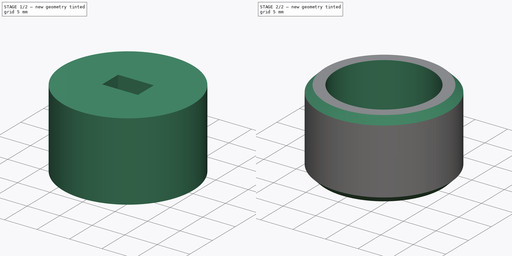
[diagram: build sequence overview — one tinted view per stage of 2, left to right]
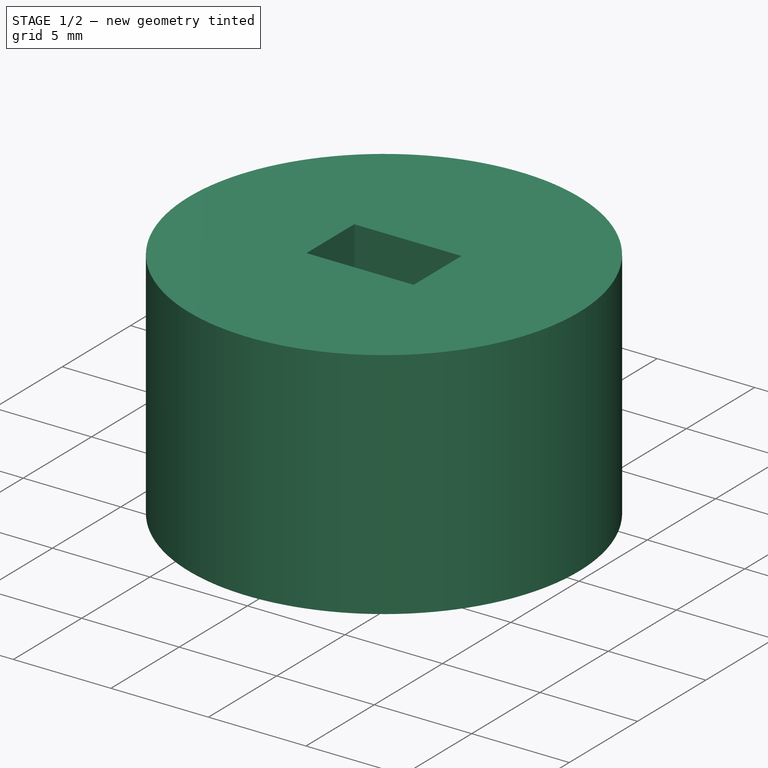
[diagram: stage 1 of 2 — iso view after this stage's code; geometry added in this stage tinted green]
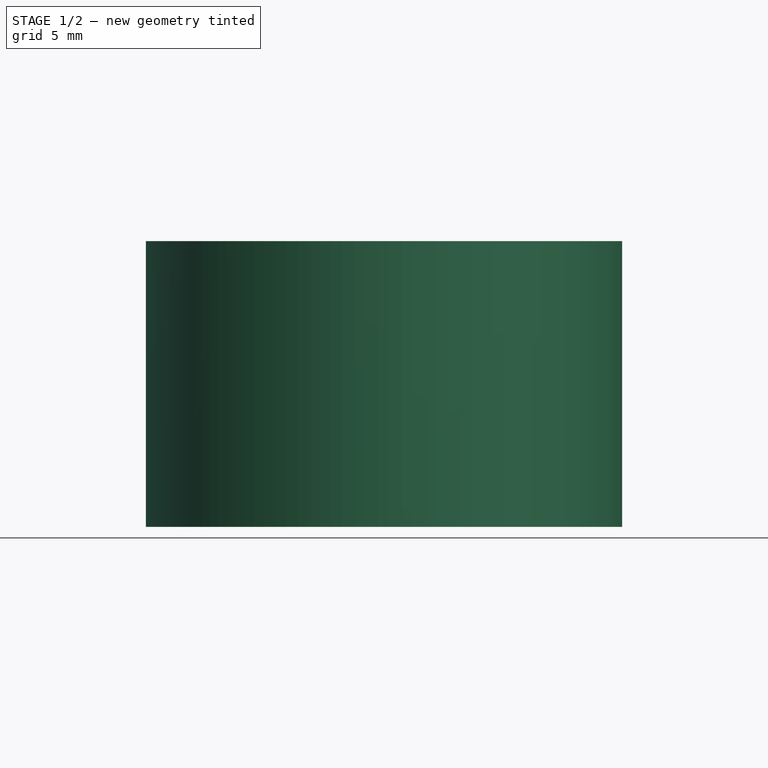
[diagram: stage 1 of 2 — front view after this stage's code; geometry added in this stage tinted green]
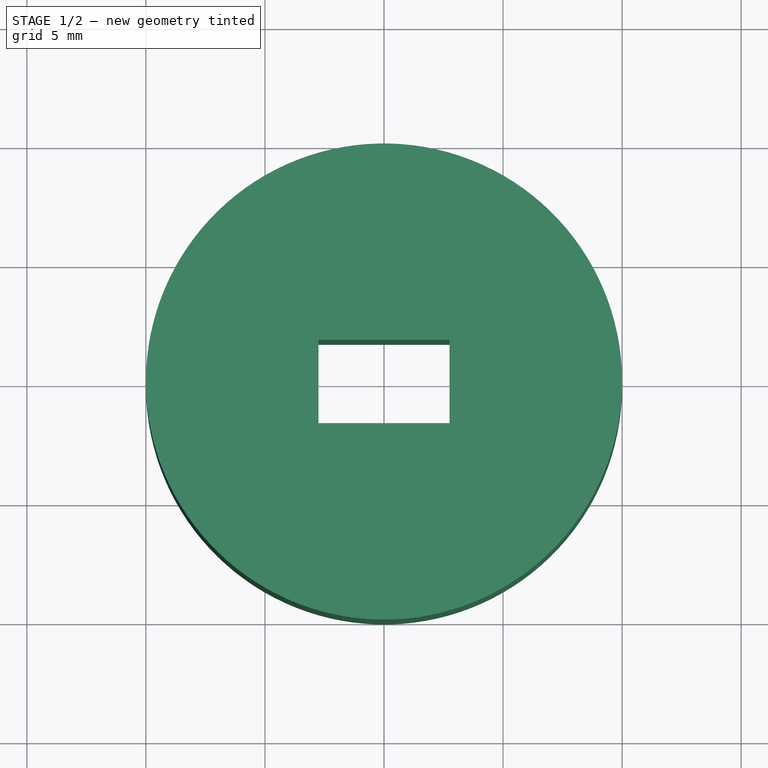
[diagram: stage 1 of 2 — top view after this stage's code; geometry added in this stage tinted green]
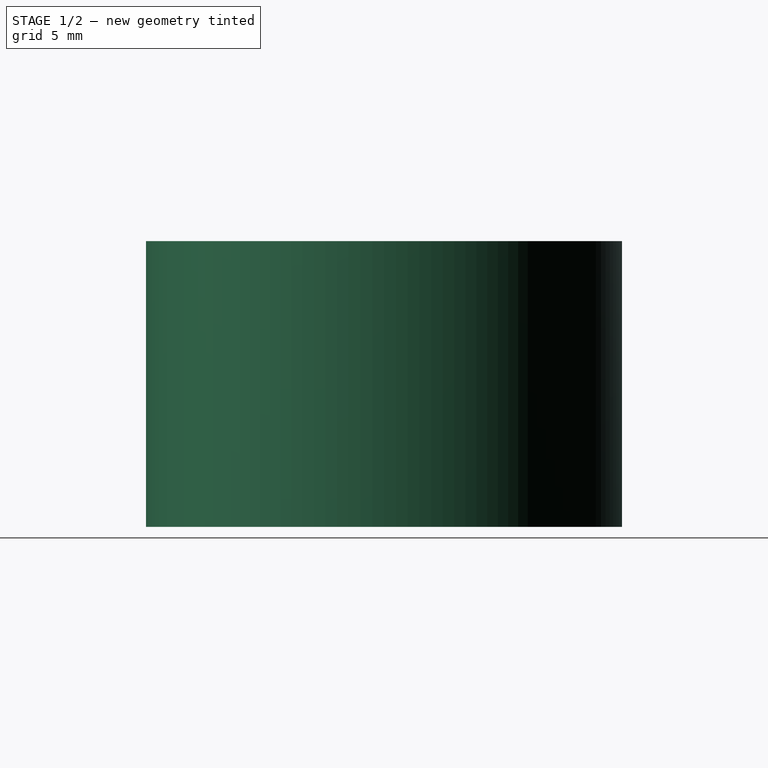
[diagram: stage 1 of 2 — right view after this stage's code; geometry added in this stage tinted green]
FCSTD DOCUMENT  (FreeCAD 0.16R6706 (Git))
Label: knob_adapter
License: All rights reserved
LicenseURL: http://en.wikipedia.org/wiki/All_rights_reserved
objects: Sketcher::SketchObject×3, PartDesign::Pocket×2, Spreadsheet::Sheet×1, PartDesign::Pad×1, PartDesign::Chamfer×1
note: 10 computed .brp shape members not serialized (recipe doc carries the construction recipe); baked Part::Feature solids carry a one-line shape summary decoded from their .brp

FEATURE [Spreadsheet::Sheet] Spreadsheet  label="Parameters"
  cells = A1=Parametric Knob Adapter; A4=Knob adapter parameters; B5=Model; C5=3D printed; D5=Radiant Dyes; E5=Thorlabs KM100; F5=Liop-Tec; A6=Inner diameter; B6(knb_D)=14.75; D6=16.1; E6=14.8; A7=Height; B7(knb_H)=7; D7=6; E7=8; A9=Knob external parameters; A10=Diameter; B10(D)=20; A11=Height; B11(H)=12; A12=Tolerance; B12(tol)=0.5; A14=Motor axle parameters; A15=Width; B15(axl_W)=5; A16=Height; B16(axl_H)=3
FEATURE [Sketcher::SketchObject] Sketch001  label="Sketch003"
  expr: Constraints[1] = Parameters.D / 2
  sketch-geometry (1):
    g0: Circle CenterX=0 CenterY=0 CenterZ=0 NormalX=0 NormalY=0 NormalZ=1 Radius=10
  constraints (2):
    c: Coincident(g0,g-1)
    c: Radius(g0) = 10
FEATURE [PartDesign::Pad] Pad  label="Main_block"
  Length = 12
  Length2 = 100
  Midplane = true
  Sketch = -> Sketch001
  Type = 0
  expr: Length = Parameters.H
FEATURE [Sketcher::SketchObject] Sketch
  Placement = pos=(0,0,-6) rot=(1,0,0;3.14159rad)
  Support = -> Pad [Face2]
  expr: Constraints[11] = Parameters.axl_H + Parameters.tol
  expr: Constraints[10] = Parameters.axl_W + Parameters.tol
  sketch-geometry (4):
    g0: LineSegment StartX=-2.75 StartY=1.75 StartZ=0 EndX=2.75 EndY=1.75 EndZ=0
    g1: LineSegment StartX=2.75 StartY=1.75 StartZ=0 EndX=2.75 EndY=-1.75 EndZ=0
    g2: LineSegment StartX=2.75 StartY=-1.75 StartZ=0 EndX=-2.75 EndY=-1.75 EndZ=0
    g3: LineSegment StartX=-2.75 StartY=-1.75 StartZ=0 EndX=-2.75 EndY=1.75 EndZ=0
  constraints (12):
    c: Coincident(g0,g1)
    c: Coincident(g1,g2)
    c: Coincident(g2,g3)
    c: Coincident(g3,g0)
    c: Horizontal(g0)
    c: Horizontal(g2)
    c: Vertical(g1)
    c: Vertical(g3)
    c: Symmetric(g0,g0,g-2)
    c: Symmetric(g2,g0,g-1)
    c: DistanceX(g0,g0) = 5.5
    c: DistanceY(g1,g1) = 3.5
FEATURE [PartDesign::Pocket] Pocket  label="Pocket_motorAxle"
  Length = 5
  Sketch = -> Sketch
  Type = 1
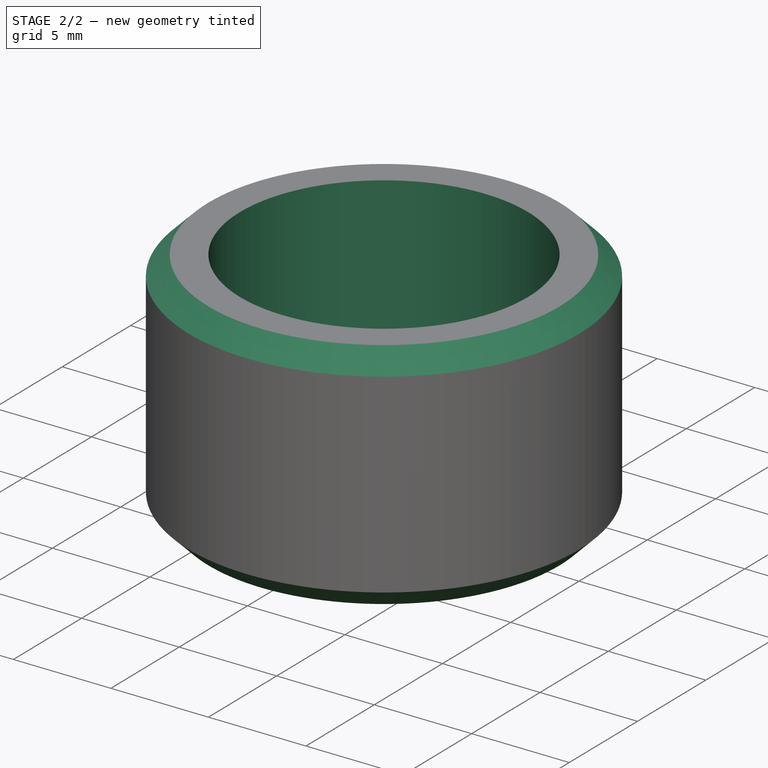
[diagram: stage 2 of 2 — iso view after this stage's code; geometry added in this stage tinted green]
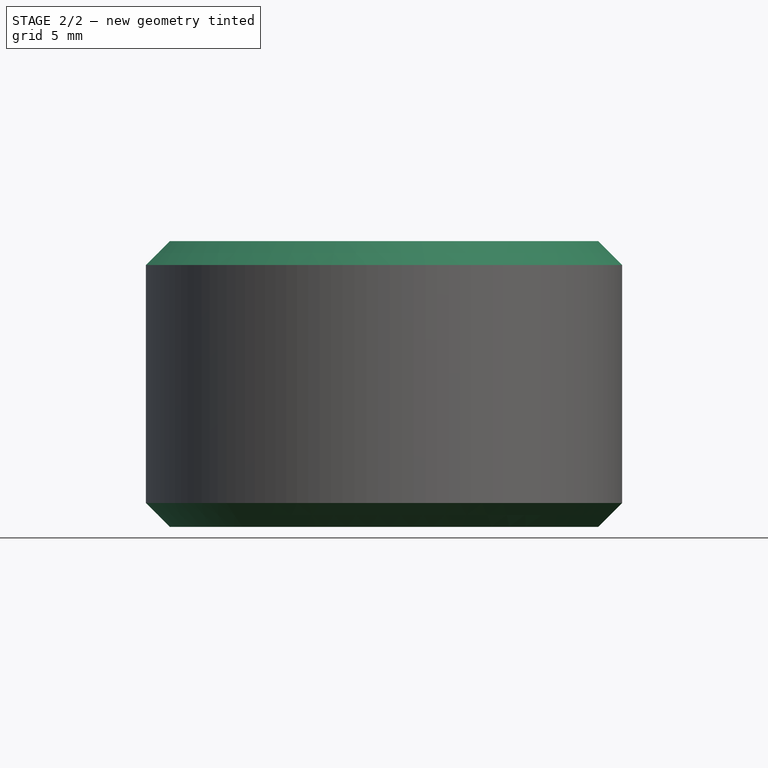
[diagram: stage 2 of 2 — front view after this stage's code; geometry added in this stage tinted green]
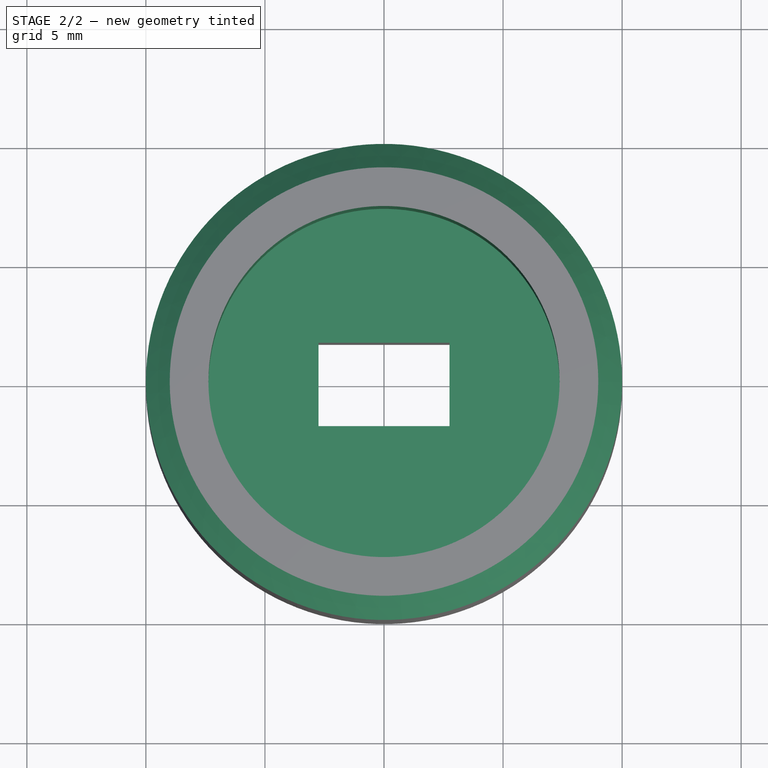
[diagram: stage 2 of 2 — top view after this stage's code; geometry added in this stage tinted green]
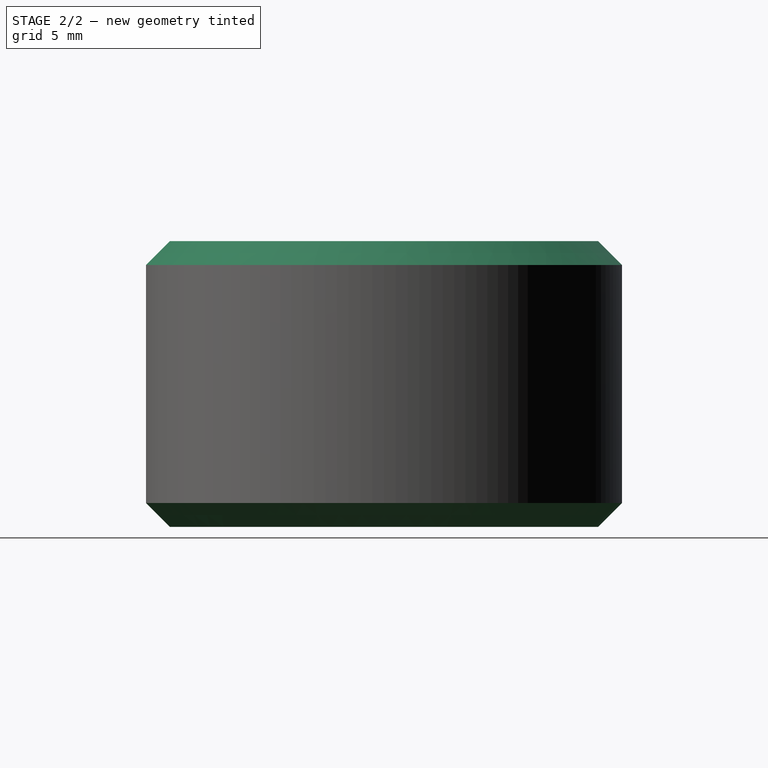
[diagram: stage 2 of 2 — right view after this stage's code; geometry added in this stage tinted green]
FEATURE [Sketcher::SketchObject] Sketch002
  Placement = pos=(0,0,6) rot=(0,0,1;0rad)
  Support = -> Pocket [Face3]
  expr: Constraints[1] = Parameters.knb_D / 2
  sketch-geometry (1):
    g0: Circle CenterX=0 CenterY=0 CenterZ=0 NormalX=0 NormalY=0 NormalZ=1 Radius=7.375
  constraints (2):
    c: Coincident(g0,g-1)
    c: Radius(g0) = 7.375
FEATURE [PartDesign::Pocket] Pocket001  label="Knob_adapter"
  Length = 7
  Sketch = -> Sketch002
  Type = 0
  expr: Length = Parameters.knb_H
FEATURE [PartDesign::Chamfer] Chamfer
  Base = -> Pocket001 [Edge3,Edge2]
  Size = 1
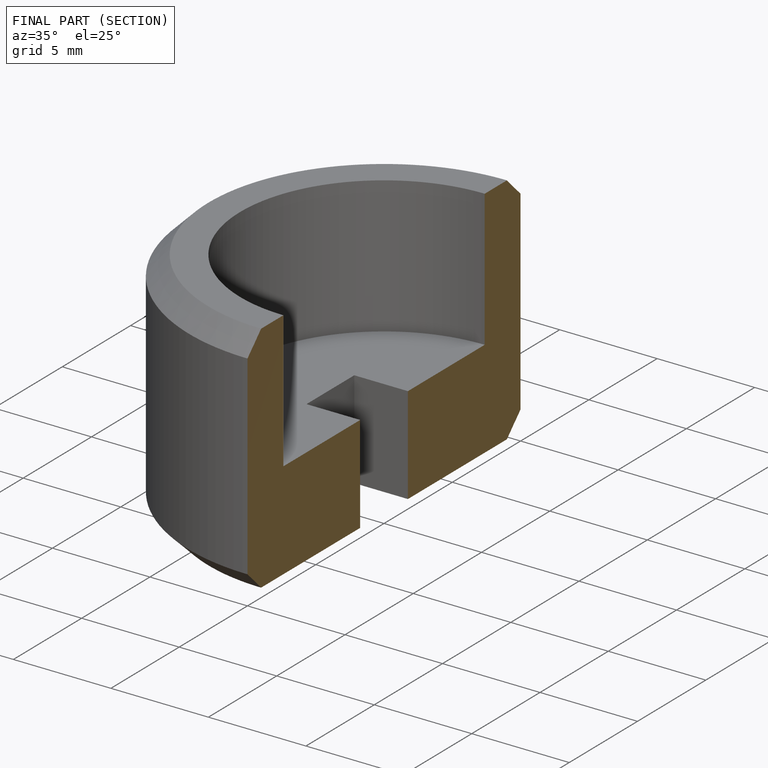
[diagram: finished part — half-section view (interior)]
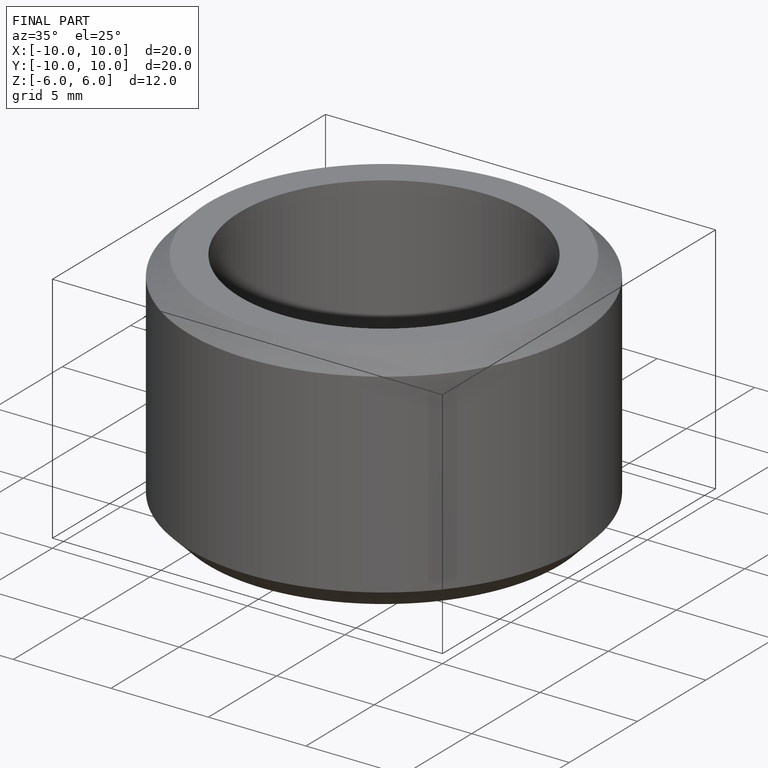
[diagram: finished part — iso view with bounding-box wireframe]
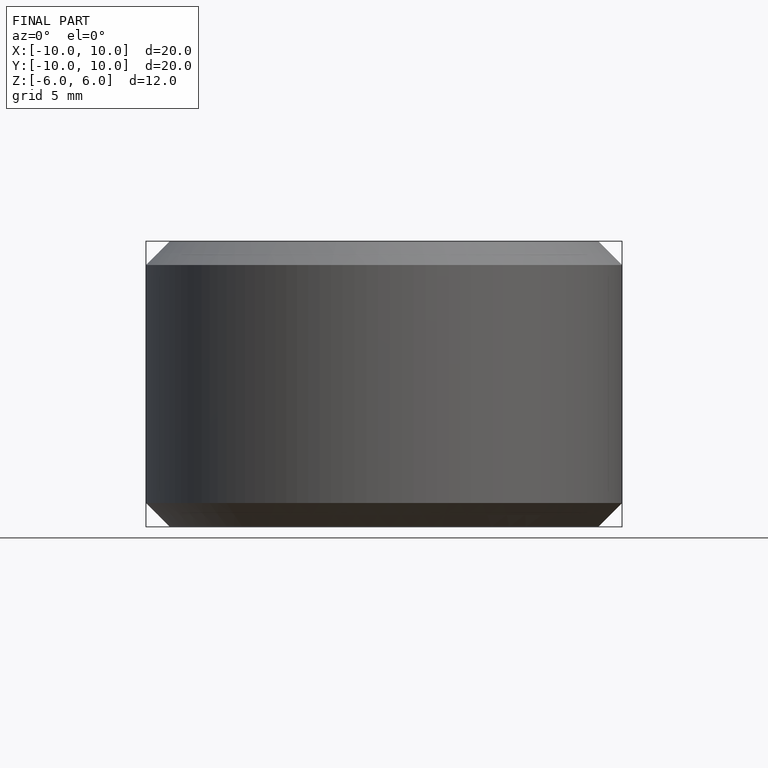
[diagram: finished part — front view with bounding-box wireframe]
